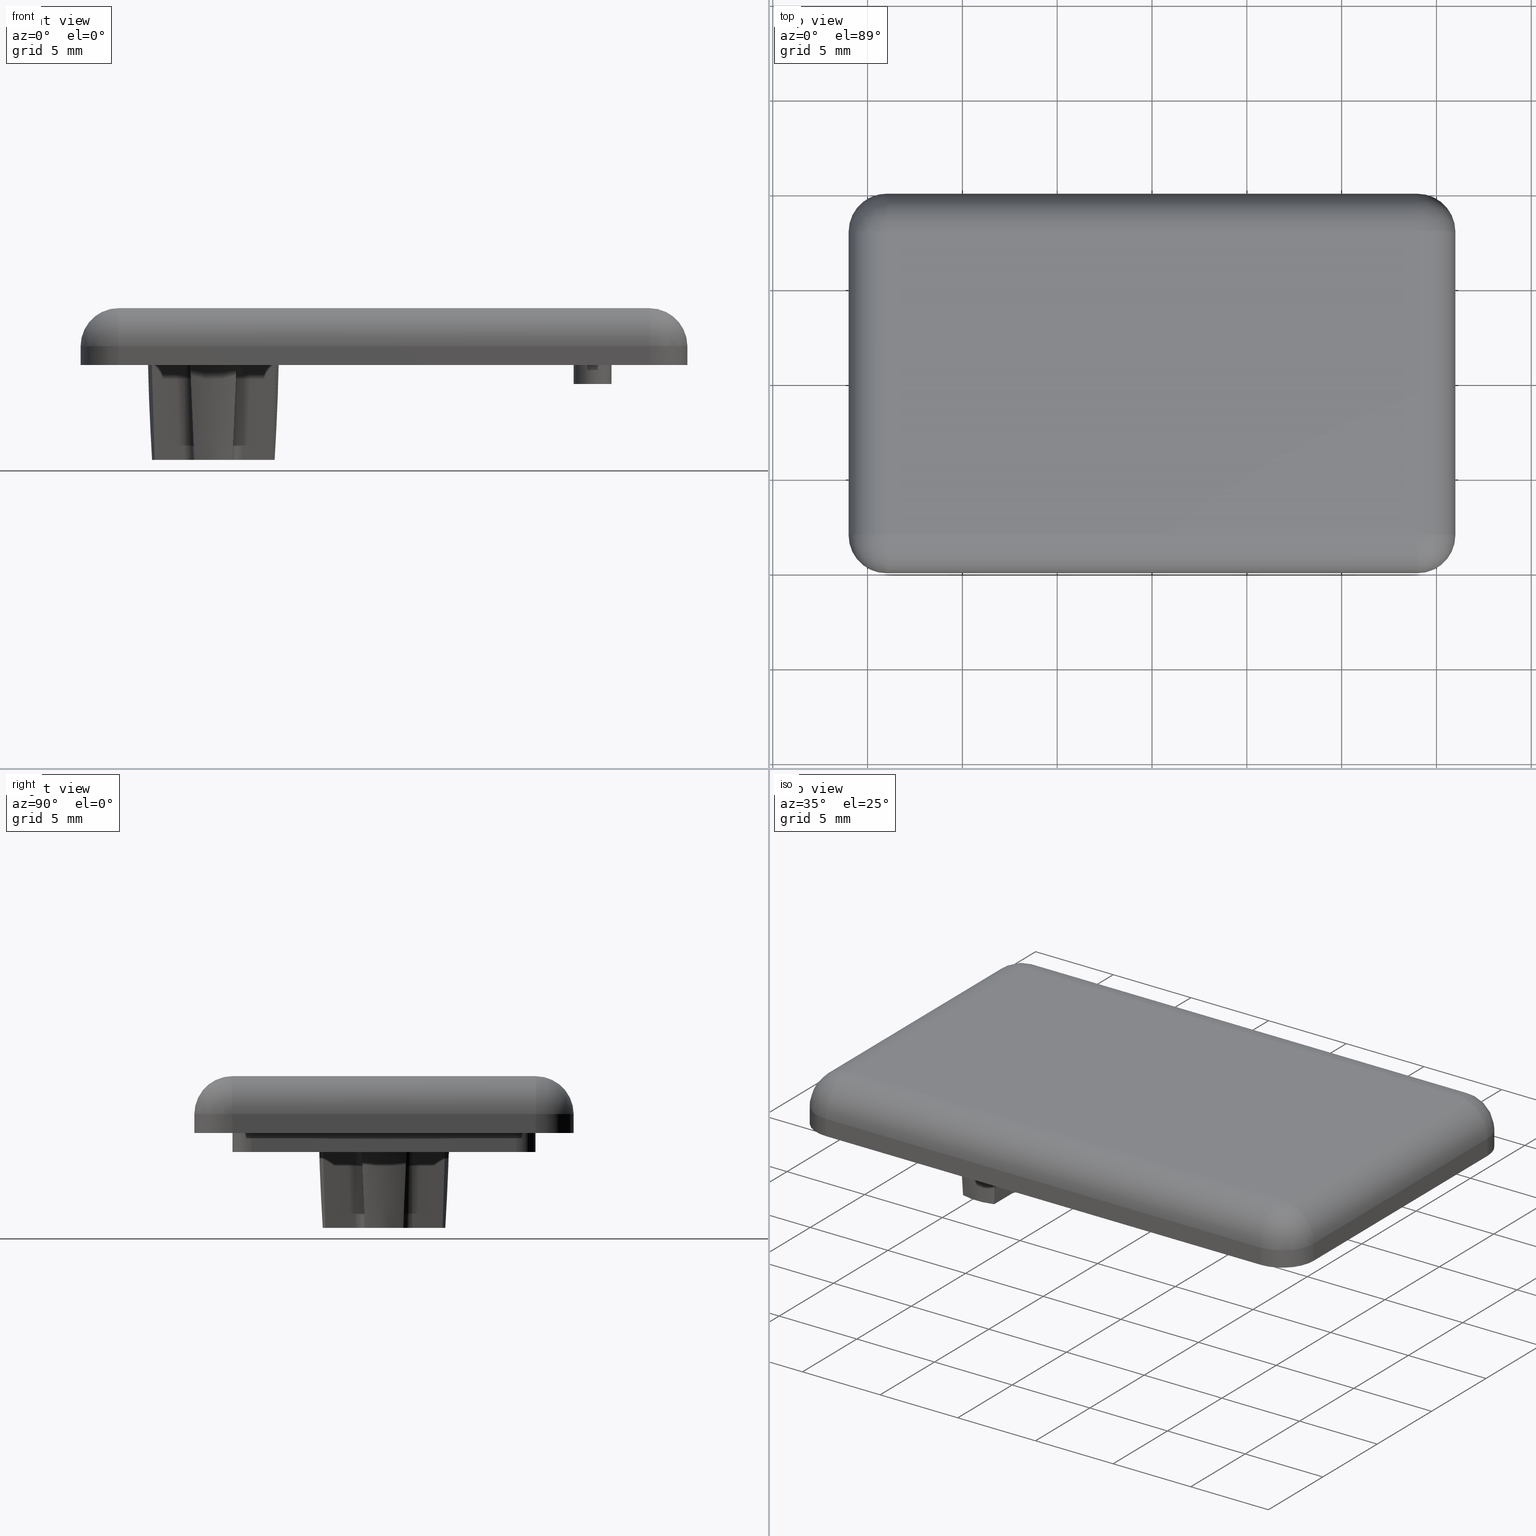
[diagram: canonical four-view strip — front | top / right | iso, engineering-drawing reading convention]
A machine part, canonical four-view strip (front | top / right | iso — engineering-drawing reading convention). The complete STEP part file that produces these views, byte-faithful:
ISO-10303-21;
HEADER;
/* Generated by software containing ST-Developer
 * from STEP Tools, Inc. (www.steptools.com) 
 */

FILE_DESCRIPTION(
/* description */ ('TAPPO 20x32 GRIGIO'),
/* implementation_level */ '2;1');

FILE_NAME(
/* name */ 
'Q:\\Catalogo\\2_Accessori Dierre\\Per Download Web e catalogo cartace
o\\CATALOGO TAPPI DI CHIUSURA\\PAGINA 88\\DTPTR0000016.stp',
/* time_stamp */ '2018-10-29T09:13:53+01:00',
/* author */ ('fzagni'),
/* organization */ (''),
/* preprocessor_version */ 'ST-DEVELOPER v16.1',
/* originating_system */ 'Autodesk Inventor 2016',
/* authorisation */ '');

FILE_SCHEMA (('AUTOMOTIVE_DESIGN { 1 0 10303 214 3 1 1 }'));
ENDSEC;

DATA;
#10=MECHANICAL_DESIGN_GEOMETRIC_PRESENTATION_REPRESENTATION('',(#13),#1175);
#11=SHAPE_REPRESENTATION_RELATIONSHIP('SRR','None',#1184,#12);
#12=ADVANCED_BREP_SHAPE_REPRESENTATION('',(#14),#1174);
#13=STYLED_ITEM('',(#1193),#14);
#14=MANIFOLD_SOLID_BREP('Solido1',#675);
#15=FACE_BOUND('',#133,.T.);
#16=FACE_BOUND('',#134,.T.);
#17=SPHERICAL_SURFACE('',#720,2.);
#18=SPHERICAL_SURFACE('',#726,2.);
#19=SPHERICAL_SURFACE('',#732,2.);
#20=SPHERICAL_SURFACE('',#739,2.);
#21=(
BOUNDED_CURVE()
B_SPLINE_CURVE(2,(#999,#1000,#1001),.UNSPECIFIED.,.F.,.F.)
B_SPLINE_CURVE_WITH_KNOTS((3,3),(82.649049565892,83.7909310166994),
 .UNSPECIFIED.)
CURVE()
GEOMETRIC_REPRESENTATION_ITEM()
RATIONAL_B_SPLINE_CURVE((1.,1.,1.))
REPRESENTATION_ITEM('')
);
#22=(
BOUNDED_CURVE()
B_SPLINE_CURVE(2,(#1004,#1005,#1006),.UNSPECIFIED.,.F.,.F.)
B_SPLINE_CURVE_WITH_KNOTS((3,3),(82.649049565206,83.7909310159598),
 .UNSPECIFIED.)
CURVE()
GEOMETRIC_REPRESENTATION_ITEM()
RATIONAL_B_SPLINE_CURVE((1.,1.,1.))
REPRESENTATION_ITEM('')
);
#23=(
BOUNDED_CURVE()
B_SPLINE_CURVE(2,(#1023,#1024,#1025),.UNSPECIFIED.,.F.,.F.)
B_SPLINE_CURVE_WITH_KNOTS((3,3),(129.365656320321,130.507537771102),
 .UNSPECIFIED.)
CURVE()
GEOMETRIC_REPRESENTATION_ITEM()
RATIONAL_B_SPLINE_CURVE((1.,1.,1.))
REPRESENTATION_ITEM('')
);
#24=(
BOUNDED_CURVE()
B_SPLINE_CURVE(2,(#1031,#1032,#1033),.UNSPECIFIED.,.F.,.F.)
B_SPLINE_CURVE_WITH_KNOTS((3,3),(129.365656320321,130.507537771102),
 .UNSPECIFIED.)
CURVE()
GEOMETRIC_REPRESENTATION_ITEM()
RATIONAL_B_SPLINE_CURVE((1.,1.,1.))
REPRESENTATION_ITEM('')
);
#25=(
BOUNDED_CURVE()
B_SPLINE_CURVE(2,(#1051,#1052,#1053),.UNSPECIFIED.,.F.,.F.)
B_SPLINE_CURVE_WITH_KNOTS((3,3),(129.365656319432,130.50753777024),
 .UNSPECIFIED.)
CURVE()
GEOMETRIC_REPRESENTATION_ITEM()
RATIONAL_B_SPLINE_CURVE((1.,1.,1.))
REPRESENTATION_ITEM('')
);
#26=(
BOUNDED_CURVE()
B_SPLINE_CURVE(2,(#1059,#1060,#1061),.UNSPECIFIED.,.F.,.F.)
B_SPLINE_CURVE_WITH_KNOTS((3,3),(82.649049565206,83.7909310159598),
 .UNSPECIFIED.)
CURVE()
GEOMETRIC_REPRESENTATION_ITEM()
RATIONAL_B_SPLINE_CURVE((1.,1.,1.))
REPRESENTATION_ITEM('')
);
#27=(
BOUNDED_CURVE()
B_SPLINE_CURVE(2,(#1079,#1080,#1081),.UNSPECIFIED.,.F.,.F.)
B_SPLINE_CURVE_WITH_KNOTS((3,3),(82.6490495655464,83.7909310163273),
 .UNSPECIFIED.)
CURVE()
GEOMETRIC_REPRESENTATION_ITEM()
RATIONAL_B_SPLINE_CURVE((1.,1.,1.))
REPRESENTATION_ITEM('')
);
#28=(
BOUNDED_CURVE()
B_SPLINE_CURVE(2,(#1087,#1088,#1089),.UNSPECIFIED.,.F.,.F.)
B_SPLINE_CURVE_WITH_KNOTS((3,3),(82.6490495655464,83.7909310163273),
 .UNSPECIFIED.)
CURVE()
GEOMETRIC_REPRESENTATION_ITEM()
RATIONAL_B_SPLINE_CURVE((1.,1.,1.))
REPRESENTATION_ITEM('')
);
#29=CONICAL_SURFACE('',#687,3.25,2.5);
#30=CONICAL_SURFACE('',#691,0.5,2.5);
#31=CONICAL_SURFACE('',#695,3.25,2.5);
#32=CONICAL_SURFACE('',#699,0.5,2.5);
#33=CONICAL_SURFACE('',#703,3.25,2.5);
#34=CONICAL_SURFACE('',#707,0.5,2.5);
#35=CONICAL_SURFACE('',#711,3.25,2.5);
#36=CONICAL_SURFACE('',#715,0.5,2.5);
#37=PLANE('',#680);
#38=PLANE('',#681);
#39=PLANE('',#685);
#40=PLANE('',#686);
#41=PLANE('',#690);
#42=PLANE('',#694);
#43=PLANE('',#698);
#44=PLANE('',#702);
#45=PLANE('',#706);
#46=PLANE('',#710);
#47=PLANE('',#714);
#48=PLANE('',#718);
#49=PLANE('',#719);
#50=PLANE('',#748);
#51=PLANE('',#749);
#52=PLANE('',#750);
#53=PLANE('',#751);
#54=PLANE('',#752);
#55=FACE_OUTER_BOUND('',#95,.T.);
#56=FACE_OUTER_BOUND('',#96,.T.);
#57=FACE_OUTER_BOUND('',#97,.T.);
#58=FACE_OUTER_BOUND('',#98,.T.);
#59=FACE_OUTER_BOUND('',#99,.T.);
#60=FACE_OUTER_BOUND('',#100,.T.);
#61=FACE_OUTER_BOUND('',#101,.T.);
#62=FACE_OUTER_BOUND('',#102,.T.);
#63=FACE_OUTER_BOUND('',#103,.T.);
#64=FACE_OUTER_BOUND('',#104,.T.);
#65=FACE_OUTER_BOUND('',#105,.T.);
#66=FACE_OUTER_BOUND('',#106,.T.);
#67=FACE_OUTER_BOUND('',#107,.T.);
#68=FACE_OUTER_BOUND('',#108,.T.);
#69=FACE_OUTER_BOUND('',#109,.T.);
#70=FACE_OUTER_BOUND('',#110,.T.);
#71=FACE_OUTER_BOUND('',#111,.T.);
#72=FACE_OUTER_BOUND('',#112,.T.);
#73=FACE_OUTER_BOUND('',#113,.T.);
#74=FACE_OUTER_BOUND('',#114,.T.);
#75=FACE_OUTER_BOUND('',#115,.T.);
#76=FACE_OUTER_BOUND('',#116,.T.);
#77=FACE_OUTER_BOUND('',#117,.T.);
#78=FACE_OUTER_BOUND('',#118,.T.);
#79=FACE_OUTER_BOUND('',#119,.T.);
#80=FACE_OUTER_BOUND('',#120,.T.);
#81=FACE_OUTER_BOUND('',#121,.T.);
#82=FACE_OUTER_BOUND('',#122,.T.);
#83=FACE_OUTER_BOUND('',#123,.T.);
#84=FACE_OUTER_BOUND('',#124,.T.);
#85=FACE_OUTER_BOUND('',#125,.T.);
#86=FACE_OUTER_BOUND('',#126,.T.);
#87=FACE_OUTER_BOUND('',#127,.T.);
#88=FACE_OUTER_BOUND('',#128,.T.);
#89=FACE_OUTER_BOUND('',#129,.T.);
#90=FACE_OUTER_BOUND('',#130,.T.);
#91=FACE_OUTER_BOUND('',#131,.T.);
#92=FACE_OUTER_BOUND('',#132,.T.);
#93=FACE_OUTER_BOUND('',#135,.T.);
#94=FACE_OUTER_BOUND('',#136,.T.);
#95=EDGE_LOOP('',(#433,#434,#435,#436));
#96=EDGE_LOOP('',(#437,#438,#439,#440));
#97=EDGE_LOOP('',(#441,#442,#443,#444));
#98=EDGE_LOOP('',(#445,#446,#447,#448));
#99=EDGE_LOOP('',(#449,#450,#451,#452));
#100=EDGE_LOOP('',(#453,#454,#455,#456));
#101=EDGE_LOOP('',(#457,#458,#459,#460));
#102=EDGE_LOOP('',(#461,#462,#463,#464));
#103=EDGE_LOOP('',(#465,#466,#467,#468));
#104=EDGE_LOOP('',(#469,#470,#471,#472));
#105=EDGE_LOOP('',(#473,#474,#475,#476));
#106=EDGE_LOOP('',(#477,#478,#479,#480));
#107=EDGE_LOOP('',(#481,#482,#483,#484));
#108=EDGE_LOOP('',(#485,#486,#487,#488));
#109=EDGE_LOOP('',(#489,#490,#491,#492));
#110=EDGE_LOOP('',(#493,#494,#495,#496));
#111=EDGE_LOOP('',(#497,#498,#499,#500));
#112=EDGE_LOOP('',(#501,#502,#503,#504));
#113=EDGE_LOOP('',(#505,#506,#507,#508));
#114=EDGE_LOOP('',(#509,#510,#511,#512));
#115=EDGE_LOOP('',(#513,#514,#515,#516));
#116=EDGE_LOOP('',(#517,#518,#519,#520));
#117=EDGE_LOOP('',(#521,#522,#523,#524,#525,#526,#527,#528,#529,#530,#531,
#532,#533,#534,#535,#536));
#118=EDGE_LOOP('',(#537,#538,#539));
#119=EDGE_LOOP('',(#540,#541,#542,#543));
#120=EDGE_LOOP('',(#544,#545,#546));
#121=EDGE_LOOP('',(#547,#548,#549,#550));
#122=EDGE_LOOP('',(#551,#552,#553));
#123=EDGE_LOOP('',(#554,#555,#556,#557));
#124=EDGE_LOOP('',(#558,#559,#560,#561));
#125=EDGE_LOOP('',(#562,#563,#564));
#126=EDGE_LOOP('',(#565,#566,#567,#568));
#127=EDGE_LOOP('',(#569,#570,#571,#572));
#128=EDGE_LOOP('',(#573,#574,#575,#576));
#129=EDGE_LOOP('',(#577,#578,#579,#580));
#130=EDGE_LOOP('',(#581,#582,#583,#584));
#131=EDGE_LOOP('',(#585,#586,#587,#588));
#132=EDGE_LOOP('',(#589,#590,#591,#592,#593,#594,#595,#596));
#133=EDGE_LOOP('',(#597,#598,#599,#600));
#134=EDGE_LOOP('',(#601,#602,#603,#604,#605,#606,#607,#608,#609,#610,#611,
#612,#613,#614,#615,#616));
#135=EDGE_LOOP('',(#617,#618,#619,#620));
#136=EDGE_LOOP('',(#621,#622,#623,#624));
#137=LINE('',#965,#189);
#138=LINE('',#968,#190);
#139=LINE('',#971,#191);
#140=LINE('',#973,#192);
#141=LINE('',#974,#193);
#142=LINE('',#977,#194);
#143=LINE('',#979,#195);
#144=LINE('',#980,#196);
#145=LINE('',#988,#197);
#146=LINE('',#990,#198);
#147=LINE('',#992,#199);
#148=LINE('',#993,#200);
#149=LINE('',#1009,#201);
#150=LINE('',#1011,#202);
#151=LINE('',#1012,#203);
#152=LINE('',#1017,#204);
#153=LINE('',#1021,#205);
#154=LINE('',#1026,#206);
#155=LINE('',#1037,#207);
#156=LINE('',#1039,#208);
#157=LINE('',#1040,#209);
#158=LINE('',#1045,#210);
#159=LINE('',#1049,#211);
#160=LINE('',#1054,#212);
#161=LINE('',#1065,#213);
#162=LINE('',#1067,#214);
#163=LINE('',#1068,#215);
#164=LINE('',#1073,#216);
#165=LINE('',#1077,#217);
#166=LINE('',#1082,#218);
#167=LINE('',#1093,#219);
#168=LINE('',#1095,#220);
#169=LINE('',#1096,#221);
#170=LINE('',#1101,#222);
#171=LINE('',#1104,#223);
#172=LINE('',#1105,#224);
#173=LINE('',#1117,#225);
#174=LINE('',#1118,#226);
#175=LINE('',#1129,#227);
#176=LINE('',#1130,#228);
#177=LINE('',#1141,#229);
#178=LINE('',#1142,#230);
#179=LINE('',#1144,#231);
#180=LINE('',#1155,#232);
#181=LINE('',#1156,#233);
#182=LINE('',#1158,#234);
#183=LINE('',#1160,#235);
#184=LINE('',#1162,#236);
#185=LINE('',#1164,#237);
#186=LINE('',#1166,#238);
#187=LINE('',#1168,#239);
#188=LINE('',#1169,#240);
#189=VECTOR('',#759,1.);
#190=VECTOR('',#762,1.);
#191=VECTOR('',#765,14.);
#192=VECTOR('',#766,1.);
#193=VECTOR('',#767,14.);
#194=VECTOR('',#770,14.);
#195=VECTOR('',#771,14.);
#196=VECTOR('',#772,1.);
#197=VECTOR('',#783,28.);
#198=VECTOR('',#784,16.);
#199=VECTOR('',#785,28.);
#200=VECTOR('',#786,16.);
#201=VECTOR('',#795,1.7472867467228);
#202=VECTOR('',#796,5.0047634258166);
#203=VECTOR('',#797,1.59232921921325);
#204=VECTOR('',#802,5.0047634258166);
#205=VECTOR('',#807,1.7472867467228);
#206=VECTOR('',#808,1.59232921921325);
#207=VECTOR('',#817,1.7472867467228);
#208=VECTOR('',#818,5.0047634258166);
#209=VECTOR('',#819,1.59232921921325);
#210=VECTOR('',#824,5.0047634258166);
#211=VECTOR('',#829,1.7472867467228);
#212=VECTOR('',#830,1.59232921921325);
#213=VECTOR('',#839,1.74728674672279);
#214=VECTOR('',#840,5.0047634258166);
#215=VECTOR('',#841,1.59232921921325);
#216=VECTOR('',#846,5.0047634258166);
#217=VECTOR('',#851,1.74728674672279);
#218=VECTOR('',#852,1.59232921921324);
#219=VECTOR('',#861,1.74728674672279);
#220=VECTOR('',#862,5.0047634258166);
#221=VECTOR('',#863,1.59232921921324);
#222=VECTOR('',#868,5.0047634258166);
#223=VECTOR('',#873,1.7472867467228);
#224=VECTOR('',#874,1.59232921921325);
#225=VECTOR('',#889,1.);
#226=VECTOR('',#890,1.);
#227=VECTOR('',#903,1.);
#228=VECTOR('',#904,1.);
#229=VECTOR('',#917,1.);
#230=VECTOR('',#918,1.);
#231=VECTOR('',#921,16.);
#232=VECTOR('',#934,1.);
#233=VECTOR('',#935,1.);
#234=VECTOR('',#938,28.);
#235=VECTOR('',#941,16.);
#236=VECTOR('',#944,28.);
#237=VECTOR('',#947,16.);
#238=VECTOR('',#950,28.);
#239=VECTOR('',#953,16.);
#240=VECTOR('',#954,28.);
#241=CIRCLE('',#678,0.999999999999999);
#242=CIRCLE('',#679,0.999999999999999);
#243=CIRCLE('',#683,0.999999999999999);
#244=CIRCLE('',#684,0.999999999999999);
#245=CIRCLE('',#688,3.46830471454256);
#246=CIRCLE('',#689,3.25);
#247=CIRCLE('',#692,0.28169528545744);
#248=CIRCLE('',#693,0.5);
#249=CIRCLE('',#696,3.46830471454256);
#250=CIRCLE('',#697,3.25);
#251=CIRCLE('',#700,0.28169528545744);
#252=CIRCLE('',#701,0.5);
#253=CIRCLE('',#704,3.46830471454256);
#254=CIRCLE('',#705,3.25);
#255=CIRCLE('',#708,0.28169528545744);
#256=CIRCLE('',#709,0.5);
#257=CIRCLE('',#712,3.46830471454256);
#258=CIRCLE('',#713,3.25);
#259=CIRCLE('',#716,0.28169528545744);
#260=CIRCLE('',#717,0.5);
#261=CIRCLE('',#721,2.);
#262=CIRCLE('',#722,2.);
#263=CIRCLE('',#723,2.);
#264=CIRCLE('',#725,2.);
#265=CIRCLE('',#727,2.);
#266=CIRCLE('',#728,2.);
#267=CIRCLE('',#729,2.);
#268=CIRCLE('',#731,2.);
#269=CIRCLE('',#733,2.);
#270=CIRCLE('',#734,2.);
#271=CIRCLE('',#735,2.);
#272=CIRCLE('',#737,2.);
#273=CIRCLE('',#740,2.);
#274=CIRCLE('',#741,2.);
#275=CIRCLE('',#742,2.);
#276=CIRCLE('',#744,2.);
#277=VERTEX_POINT('',#961);
#278=VERTEX_POINT('',#962);
#279=VERTEX_POINT('',#964);
#280=VERTEX_POINT('',#966);
#281=VERTEX_POINT('',#970);
#282=VERTEX_POINT('',#972);
#283=VERTEX_POINT('',#976);
#284=VERTEX_POINT('',#978);
#285=VERTEX_POINT('',#986);
#286=VERTEX_POINT('',#987);
#287=VERTEX_POINT('',#989);
#288=VERTEX_POINT('',#991);
#289=VERTEX_POINT('',#995);
#290=VERTEX_POINT('',#996);
#291=VERTEX_POINT('',#998);
#292=VERTEX_POINT('',#1002);
#293=VERTEX_POINT('',#1008);
#294=VERTEX_POINT('',#1010);
#295=VERTEX_POINT('',#1014);
#296=VERTEX_POINT('',#1016);
#297=VERTEX_POINT('',#1020);
#298=VERTEX_POINT('',#1022);
#299=VERTEX_POINT('',#1028);
#300=VERTEX_POINT('',#1030);
#301=VERTEX_POINT('',#1036);
#302=VERTEX_POINT('',#1038);
#303=VERTEX_POINT('',#1042);
#304=VERTEX_POINT('',#1044);
#305=VERTEX_POINT('',#1048);
#306=VERTEX_POINT('',#1050);
#307=VERTEX_POINT('',#1056);
#308=VERTEX_POINT('',#1058);
#309=VERTEX_POINT('',#1064);
#310=VERTEX_POINT('',#1066);
#311=VERTEX_POINT('',#1070);
#312=VERTEX_POINT('',#1072);
#313=VERTEX_POINT('',#1076);
#314=VERTEX_POINT('',#1078);
#315=VERTEX_POINT('',#1084);
#316=VERTEX_POINT('',#1086);
#317=VERTEX_POINT('',#1092);
#318=VERTEX_POINT('',#1094);
#319=VERTEX_POINT('',#1098);
#320=VERTEX_POINT('',#1100);
#321=VERTEX_POINT('',#1108);
#322=VERTEX_POINT('',#1110);
#323=VERTEX_POINT('',#1114);
#324=VERTEX_POINT('',#1115);
#325=VERTEX_POINT('',#1120);
#326=VERTEX_POINT('',#1122);
#327=VERTEX_POINT('',#1126);
#328=VERTEX_POINT('',#1127);
#329=VERTEX_POINT('',#1132);
#330=VERTEX_POINT('',#1134);
#331=VERTEX_POINT('',#1138);
#332=VERTEX_POINT('',#1139);
#333=VERTEX_POINT('',#1146);
#334=VERTEX_POINT('',#1148);
#335=VERTEX_POINT('',#1152);
#336=VERTEX_POINT('',#1153);
#337=EDGE_CURVE('',#277,#278,#241,.T.);
#338=EDGE_CURVE('',#279,#277,#137,.T.);
#339=EDGE_CURVE('',#280,#279,#242,.T.);
#340=EDGE_CURVE('',#280,#278,#138,.T.);
#341=EDGE_CURVE('',#281,#277,#139,.T.);
#342=EDGE_CURVE('',#282,#281,#140,.T.);
#343=EDGE_CURVE('',#279,#282,#141,.T.);
#344=EDGE_CURVE('',#278,#283,#142,.T.);
#345=EDGE_CURVE('',#284,#280,#143,.T.);
#346=EDGE_CURVE('',#284,#283,#144,.T.);
#347=EDGE_CURVE('',#283,#281,#243,.T.);
#348=EDGE_CURVE('',#282,#284,#244,.T.);
#349=EDGE_CURVE('',#285,#286,#145,.T.);
#350=EDGE_CURVE('',#287,#285,#146,.T.);
#351=EDGE_CURVE('',#288,#287,#147,.T.);
#352=EDGE_CURVE('',#286,#288,#148,.T.);
#353=EDGE_CURVE('',#289,#290,#245,.F.);
#354=EDGE_CURVE('',#291,#289,#21,.F.);
#355=EDGE_CURVE('',#291,#292,#246,.T.);
#356=EDGE_CURVE('',#292,#290,#22,.F.);
#357=EDGE_CURVE('',#293,#289,#149,.F.);
#358=EDGE_CURVE('',#294,#293,#150,.T.);
#359=EDGE_CURVE('',#294,#291,#151,.T.);
#360=EDGE_CURVE('',#295,#293,#247,.F.);
#361=EDGE_CURVE('',#296,#295,#152,.T.);
#362=EDGE_CURVE('',#296,#294,#248,.T.);
#363=EDGE_CURVE('',#297,#295,#153,.F.);
#364=EDGE_CURVE('',#298,#297,#23,.T.);
#365=EDGE_CURVE('',#298,#296,#154,.T.);
#366=EDGE_CURVE('',#299,#297,#249,.F.);
#367=EDGE_CURVE('',#300,#299,#24,.T.);
#368=EDGE_CURVE('',#300,#298,#250,.T.);
#369=EDGE_CURVE('',#301,#299,#155,.F.);
#370=EDGE_CURVE('',#302,#301,#156,.T.);
#371=EDGE_CURVE('',#302,#300,#157,.T.);
#372=EDGE_CURVE('',#303,#301,#251,.F.);
#373=EDGE_CURVE('',#304,#303,#158,.T.);
#374=EDGE_CURVE('',#304,#302,#252,.T.);
#375=EDGE_CURVE('',#305,#303,#159,.F.);
#376=EDGE_CURVE('',#306,#305,#25,.T.);
#377=EDGE_CURVE('',#306,#304,#160,.T.);
#378=EDGE_CURVE('',#307,#305,#253,.F.);
#379=EDGE_CURVE('',#308,#307,#26,.F.);
#380=EDGE_CURVE('',#308,#306,#254,.T.);
#381=EDGE_CURVE('',#309,#307,#161,.F.);
#382=EDGE_CURVE('',#310,#309,#162,.T.);
#383=EDGE_CURVE('',#310,#308,#163,.T.);
#384=EDGE_CURVE('',#311,#309,#255,.F.);
#385=EDGE_CURVE('',#312,#311,#164,.T.);
#386=EDGE_CURVE('',#312,#310,#256,.T.);
#387=EDGE_CURVE('',#313,#311,#165,.F.);
#388=EDGE_CURVE('',#314,#313,#27,.F.);
#389=EDGE_CURVE('',#314,#312,#166,.T.);
#390=EDGE_CURVE('',#315,#313,#257,.F.);
#391=EDGE_CURVE('',#316,#315,#28,.F.);
#392=EDGE_CURVE('',#316,#314,#258,.T.);
#393=EDGE_CURVE('',#317,#315,#167,.F.);
#394=EDGE_CURVE('',#318,#317,#168,.T.);
#395=EDGE_CURVE('',#318,#316,#169,.T.);
#396=EDGE_CURVE('',#319,#317,#259,.F.);
#397=EDGE_CURVE('',#320,#319,#170,.T.);
#398=EDGE_CURVE('',#320,#318,#260,.T.);
#399=EDGE_CURVE('',#290,#319,#171,.F.);
#400=EDGE_CURVE('',#292,#320,#172,.T.);
#401=EDGE_CURVE('',#321,#286,#261,.F.);
#402=EDGE_CURVE('',#322,#321,#262,.F.);
#403=EDGE_CURVE('',#286,#322,#263,.F.);
#404=EDGE_CURVE('',#323,#324,#264,.T.);
#405=EDGE_CURVE('',#324,#322,#173,.T.);
#406=EDGE_CURVE('',#321,#323,#174,.T.);
#407=EDGE_CURVE('',#325,#285,#265,.F.);
#408=EDGE_CURVE('',#326,#325,#266,.F.);
#409=EDGE_CURVE('',#285,#326,#267,.F.);
#410=EDGE_CURVE('',#327,#328,#268,.T.);
#411=EDGE_CURVE('',#328,#326,#175,.T.);
#412=EDGE_CURVE('',#325,#327,#176,.T.);
#413=EDGE_CURVE('',#329,#288,#269,.F.);
#414=EDGE_CURVE('',#330,#329,#270,.F.);
#415=EDGE_CURVE('',#288,#330,#271,.F.);
#416=EDGE_CURVE('',#331,#332,#272,.T.);
#417=EDGE_CURVE('',#332,#330,#177,.T.);
#418=EDGE_CURVE('',#329,#331,#178,.T.);
#419=EDGE_CURVE('',#330,#321,#179,.T.);
#420=EDGE_CURVE('',#333,#287,#273,.F.);
#421=EDGE_CURVE('',#334,#333,#274,.F.);
#422=EDGE_CURVE('',#287,#334,#275,.F.);
#423=EDGE_CURVE('',#335,#336,#276,.T.);
#424=EDGE_CURVE('',#336,#334,#180,.T.);
#425=EDGE_CURVE('',#333,#335,#181,.T.);
#426=EDGE_CURVE('',#334,#329,#182,.T.);
#427=EDGE_CURVE('',#326,#333,#183,.T.);
#428=EDGE_CURVE('',#322,#325,#184,.T.);
#429=EDGE_CURVE('',#323,#332,#185,.T.);
#430=EDGE_CURVE('',#331,#336,#186,.T.);
#431=EDGE_CURVE('',#335,#328,#187,.T.);
#432=EDGE_CURVE('',#327,#324,#188,.T.);
#433=ORIENTED_EDGE('',*,*,#337,.F.);
#434=ORIENTED_EDGE('',*,*,#338,.F.);
#435=ORIENTED_EDGE('',*,*,#339,.F.);
#436=ORIENTED_EDGE('',*,*,#340,.T.);
#437=ORIENTED_EDGE('',*,*,#341,.F.);
#438=ORIENTED_EDGE('',*,*,#342,.F.);
#439=ORIENTED_EDGE('',*,*,#343,.F.);
#440=ORIENTED_EDGE('',*,*,#338,.T.);
#441=ORIENTED_EDGE('',*,*,#344,.F.);
#442=ORIENTED_EDGE('',*,*,#340,.F.);
#443=ORIENTED_EDGE('',*,*,#345,.F.);
#444=ORIENTED_EDGE('',*,*,#346,.T.);
#445=ORIENTED_EDGE('',*,*,#347,.F.);
#446=ORIENTED_EDGE('',*,*,#346,.F.);
#447=ORIENTED_EDGE('',*,*,#348,.F.);
#448=ORIENTED_EDGE('',*,*,#342,.T.);
#449=ORIENTED_EDGE('',*,*,#343,.T.);
#450=ORIENTED_EDGE('',*,*,#348,.T.);
#451=ORIENTED_EDGE('',*,*,#345,.T.);
#452=ORIENTED_EDGE('',*,*,#339,.T.);
#453=ORIENTED_EDGE('',*,*,#349,.F.);
#454=ORIENTED_EDGE('',*,*,#350,.F.);
#455=ORIENTED_EDGE('',*,*,#351,.F.);
#456=ORIENTED_EDGE('',*,*,#352,.F.);
#457=ORIENTED_EDGE('',*,*,#353,.F.);
#458=ORIENTED_EDGE('',*,*,#354,.F.);
#459=ORIENTED_EDGE('',*,*,#355,.T.);
#460=ORIENTED_EDGE('',*,*,#356,.T.);
#461=ORIENTED_EDGE('',*,*,#357,.F.);
#462=ORIENTED_EDGE('',*,*,#358,.F.);
#463=ORIENTED_EDGE('',*,*,#359,.T.);
#464=ORIENTED_EDGE('',*,*,#354,.T.);
#465=ORIENTED_EDGE('',*,*,#360,.F.);
#466=ORIENTED_EDGE('',*,*,#361,.F.);
#467=ORIENTED_EDGE('',*,*,#362,.T.);
#468=ORIENTED_EDGE('',*,*,#358,.T.);
#469=ORIENTED_EDGE('',*,*,#363,.F.);
#470=ORIENTED_EDGE('',*,*,#364,.F.);
#471=ORIENTED_EDGE('',*,*,#365,.T.);
#472=ORIENTED_EDGE('',*,*,#361,.T.);
#473=ORIENTED_EDGE('',*,*,#366,.F.);
#474=ORIENTED_EDGE('',*,*,#367,.F.);
#475=ORIENTED_EDGE('',*,*,#368,.T.);
#476=ORIENTED_EDGE('',*,*,#364,.T.);
#477=ORIENTED_EDGE('',*,*,#369,.F.);
#478=ORIENTED_EDGE('',*,*,#370,.F.);
#479=ORIENTED_EDGE('',*,*,#371,.T.);
#480=ORIENTED_EDGE('',*,*,#367,.T.);
#481=ORIENTED_EDGE('',*,*,#372,.F.);
#482=ORIENTED_EDGE('',*,*,#373,.F.);
#483=ORIENTED_EDGE('',*,*,#374,.T.);
#484=ORIENTED_EDGE('',*,*,#370,.T.);
#485=ORIENTED_EDGE('',*,*,#375,.F.);
#486=ORIENTED_EDGE('',*,*,#376,.F.);
#487=ORIENTED_EDGE('',*,*,#377,.T.);
#488=ORIENTED_EDGE('',*,*,#373,.T.);
#489=ORIENTED_EDGE('',*,*,#378,.F.);
#490=ORIENTED_EDGE('',*,*,#379,.F.);
#491=ORIENTED_EDGE('',*,*,#380,.T.);
#492=ORIENTED_EDGE('',*,*,#376,.T.);
#493=ORIENTED_EDGE('',*,*,#381,.F.);
#494=ORIENTED_EDGE('',*,*,#382,.F.);
#495=ORIENTED_EDGE('',*,*,#383,.T.);
#496=ORIENTED_EDGE('',*,*,#379,.T.);
#497=ORIENTED_EDGE('',*,*,#384,.F.);
#498=ORIENTED_EDGE('',*,*,#385,.F.);
#499=ORIENTED_EDGE('',*,*,#386,.T.);
#500=ORIENTED_EDGE('',*,*,#382,.T.);
#501=ORIENTED_EDGE('',*,*,#387,.F.);
#502=ORIENTED_EDGE('',*,*,#388,.F.);
#503=ORIENTED_EDGE('',*,*,#389,.T.);
#504=ORIENTED_EDGE('',*,*,#385,.T.);
#505=ORIENTED_EDGE('',*,*,#390,.F.);
#506=ORIENTED_EDGE('',*,*,#391,.F.);
#507=ORIENTED_EDGE('',*,*,#392,.T.);
#508=ORIENTED_EDGE('',*,*,#388,.T.);
#509=ORIENTED_EDGE('',*,*,#393,.F.);
#510=ORIENTED_EDGE('',*,*,#394,.F.);
#511=ORIENTED_EDGE('',*,*,#395,.T.);
#512=ORIENTED_EDGE('',*,*,#391,.T.);
#513=ORIENTED_EDGE('',*,*,#396,.F.);
#514=ORIENTED_EDGE('',*,*,#397,.F.);
#515=ORIENTED_EDGE('',*,*,#398,.T.);
#516=ORIENTED_EDGE('',*,*,#394,.T.);
#517=ORIENTED_EDGE('',*,*,#399,.F.);
#518=ORIENTED_EDGE('',*,*,#356,.F.);
#519=ORIENTED_EDGE('',*,*,#400,.T.);
#520=ORIENTED_EDGE('',*,*,#397,.T.);
#521=ORIENTED_EDGE('',*,*,#374,.F.);
#522=ORIENTED_EDGE('',*,*,#377,.F.);
#523=ORIENTED_EDGE('',*,*,#380,.F.);
#524=ORIENTED_EDGE('',*,*,#383,.F.);
#525=ORIENTED_EDGE('',*,*,#386,.F.);
#526=ORIENTED_EDGE('',*,*,#389,.F.);
#527=ORIENTED_EDGE('',*,*,#392,.F.);
#528=ORIENTED_EDGE('',*,*,#395,.F.);
#529=ORIENTED_EDGE('',*,*,#398,.F.);
#530=ORIENTED_EDGE('',*,*,#400,.F.);
#531=ORIENTED_EDGE('',*,*,#355,.F.);
#532=ORIENTED_EDGE('',*,*,#359,.F.);
#533=ORIENTED_EDGE('',*,*,#362,.F.);
#534=ORIENTED_EDGE('',*,*,#365,.F.);
#535=ORIENTED_EDGE('',*,*,#368,.F.);
#536=ORIENTED_EDGE('',*,*,#371,.F.);
#537=ORIENTED_EDGE('',*,*,#401,.F.);
#538=ORIENTED_EDGE('',*,*,#402,.F.);
#539=ORIENTED_EDGE('',*,*,#403,.F.);
#540=ORIENTED_EDGE('',*,*,#404,.T.);
#541=ORIENTED_EDGE('',*,*,#405,.T.);
#542=ORIENTED_EDGE('',*,*,#402,.T.);
#543=ORIENTED_EDGE('',*,*,#406,.T.);
#544=ORIENTED_EDGE('',*,*,#407,.F.);
#545=ORIENTED_EDGE('',*,*,#408,.F.);
#546=ORIENTED_EDGE('',*,*,#409,.F.);
#547=ORIENTED_EDGE('',*,*,#410,.T.);
#548=ORIENTED_EDGE('',*,*,#411,.T.);
#549=ORIENTED_EDGE('',*,*,#408,.T.);
#550=ORIENTED_EDGE('',*,*,#412,.T.);
#551=ORIENTED_EDGE('',*,*,#413,.F.);
#552=ORIENTED_EDGE('',*,*,#414,.F.);
#553=ORIENTED_EDGE('',*,*,#415,.F.);
#554=ORIENTED_EDGE('',*,*,#416,.T.);
#555=ORIENTED_EDGE('',*,*,#417,.T.);
#556=ORIENTED_EDGE('',*,*,#414,.T.);
#557=ORIENTED_EDGE('',*,*,#418,.T.);
#558=ORIENTED_EDGE('',*,*,#401,.T.);
#559=ORIENTED_EDGE('',*,*,#352,.T.);
#560=ORIENTED_EDGE('',*,*,#415,.T.);
#561=ORIENTED_EDGE('',*,*,#419,.T.);
#562=ORIENTED_EDGE('',*,*,#420,.F.);
#563=ORIENTED_EDGE('',*,*,#421,.F.);
#564=ORIENTED_EDGE('',*,*,#422,.F.);
#565=ORIENTED_EDGE('',*,*,#423,.T.);
#566=ORIENTED_EDGE('',*,*,#424,.T.);
#567=ORIENTED_EDGE('',*,*,#421,.T.);
#568=ORIENTED_EDGE('',*,*,#425,.T.);
#569=ORIENTED_EDGE('',*,*,#413,.T.);
#570=ORIENTED_EDGE('',*,*,#351,.T.);
#571=ORIENTED_EDGE('',*,*,#422,.T.);
#572=ORIENTED_EDGE('',*,*,#426,.T.);
#573=ORIENTED_EDGE('',*,*,#420,.T.);
#574=ORIENTED_EDGE('',*,*,#350,.T.);
#575=ORIENTED_EDGE('',*,*,#409,.T.);
#576=ORIENTED_EDGE('',*,*,#427,.T.);
#577=ORIENTED_EDGE('',*,*,#407,.T.);
#578=ORIENTED_EDGE('',*,*,#349,.T.);
#579=ORIENTED_EDGE('',*,*,#403,.T.);
#580=ORIENTED_EDGE('',*,*,#428,.T.);
#581=ORIENTED_EDGE('',*,*,#406,.F.);
#582=ORIENTED_EDGE('',*,*,#419,.F.);
#583=ORIENTED_EDGE('',*,*,#417,.F.);
#584=ORIENTED_EDGE('',*,*,#429,.F.);
#585=ORIENTED_EDGE('',*,*,#418,.F.);
#586=ORIENTED_EDGE('',*,*,#426,.F.);
#587=ORIENTED_EDGE('',*,*,#424,.F.);
#588=ORIENTED_EDGE('',*,*,#430,.F.);
#589=ORIENTED_EDGE('',*,*,#404,.F.);
#590=ORIENTED_EDGE('',*,*,#429,.T.);
#591=ORIENTED_EDGE('',*,*,#416,.F.);
#592=ORIENTED_EDGE('',*,*,#430,.T.);
#593=ORIENTED_EDGE('',*,*,#423,.F.);
#594=ORIENTED_EDGE('',*,*,#431,.T.);
#595=ORIENTED_EDGE('',*,*,#410,.F.);
#596=ORIENTED_EDGE('',*,*,#432,.T.);
#597=ORIENTED_EDGE('',*,*,#347,.T.);
#598=ORIENTED_EDGE('',*,*,#341,.T.);
#599=ORIENTED_EDGE('',*,*,#337,.T.);
#600=ORIENTED_EDGE('',*,*,#344,.T.);
#601=ORIENTED_EDGE('',*,*,#375,.T.);
#602=ORIENTED_EDGE('',*,*,#372,.T.);
#603=ORIENTED_EDGE('',*,*,#369,.T.);
#604=ORIENTED_EDGE('',*,*,#366,.T.);
#605=ORIENTED_EDGE('',*,*,#363,.T.);
#606=ORIENTED_EDGE('',*,*,#360,.T.);
#607=ORIENTED_EDGE('',*,*,#357,.T.);
#608=ORIENTED_EDGE('',*,*,#353,.T.);
#609=ORIENTED_EDGE('',*,*,#399,.T.);
#610=ORIENTED_EDGE('',*,*,#396,.T.);
#611=ORIENTED_EDGE('',*,*,#393,.T.);
#612=ORIENTED_EDGE('',*,*,#390,.T.);
#613=ORIENTED_EDGE('',*,*,#387,.T.);
#614=ORIENTED_EDGE('',*,*,#384,.T.);
#615=ORIENTED_EDGE('',*,*,#381,.T.);
#616=ORIENTED_EDGE('',*,*,#378,.T.);
#617=ORIENTED_EDGE('',*,*,#411,.F.);
#618=ORIENTED_EDGE('',*,*,#431,.F.);
#619=ORIENTED_EDGE('',*,*,#425,.F.);
#620=ORIENTED_EDGE('',*,*,#427,.F.);
#621=ORIENTED_EDGE('',*,*,#405,.F.);
#622=ORIENTED_EDGE('',*,*,#432,.F.);
#623=ORIENTED_EDGE('',*,*,#412,.F.);
#624=ORIENTED_EDGE('',*,*,#428,.F.);
#625=CYLINDRICAL_SURFACE('',#677,0.999999999999999);
#626=CYLINDRICAL_SURFACE('',#682,0.999999999999999);
#627=CYLINDRICAL_SURFACE('',#724,2.);
#628=CYLINDRICAL_SURFACE('',#730,2.);
#629=CYLINDRICAL_SURFACE('',#736,2.);
#630=CYLINDRICAL_SURFACE('',#738,2.);
#631=CYLINDRICAL_SURFACE('',#743,2.);
#632=CYLINDRICAL_SURFACE('',#745,2.);
#633=CYLINDRICAL_SURFACE('',#746,2.);
#634=CYLINDRICAL_SURFACE('',#747,2.);
#635=ADVANCED_FACE('',(#55),#625,.T.);
#636=ADVANCED_FACE('',(#56),#37,.T.);
#637=ADVANCED_FACE('',(#57),#38,.T.);
#638=ADVANCED_FACE('',(#58),#626,.T.);
#639=ADVANCED_FACE('',(#59),#39,.F.);
#640=ADVANCED_FACE('',(#60),#40,.T.);
#641=ADVANCED_FACE('',(#61),#29,.T.);
#642=ADVANCED_FACE('',(#62),#41,.T.);
#643=ADVANCED_FACE('',(#63),#30,.F.);
#644=ADVANCED_FACE('',(#64),#42,.T.);
#645=ADVANCED_FACE('',(#65),#31,.T.);
#646=ADVANCED_FACE('',(#66),#43,.T.);
#647=ADVANCED_FACE('',(#67),#32,.F.);
#648=ADVANCED_FACE('',(#68),#44,.T.);
#649=ADVANCED_FACE('',(#69),#33,.T.);
#650=ADVANCED_FACE('',(#70),#45,.T.);
#651=ADVANCED_FACE('',(#71),#34,.F.);
#652=ADVANCED_FACE('',(#72),#46,.T.);
#653=ADVANCED_FACE('',(#73),#35,.T.);
#654=ADVANCED_FACE('',(#74),#47,.T.);
#655=ADVANCED_FACE('',(#75),#36,.F.);
#656=ADVANCED_FACE('',(#76),#48,.T.);
#657=ADVANCED_FACE('',(#77),#49,.F.);
#658=ADVANCED_FACE('',(#78),#17,.T.);
#659=ADVANCED_FACE('',(#79),#627,.T.);
#660=ADVANCED_FACE('',(#80),#18,.T.);
#661=ADVANCED_FACE('',(#81),#628,.T.);
#662=ADVANCED_FACE('',(#82),#19,.T.);
#663=ADVANCED_FACE('',(#83),#629,.T.);
#664=ADVANCED_FACE('',(#84),#630,.T.);
#665=ADVANCED_FACE('',(#85),#20,.T.);
#666=ADVANCED_FACE('',(#86),#631,.T.);
#667=ADVANCED_FACE('',(#87),#632,.T.);
#668=ADVANCED_FACE('',(#88),#633,.T.);
#669=ADVANCED_FACE('',(#89),#634,.T.);
#670=ADVANCED_FACE('',(#90),#50,.T.);
#671=ADVANCED_FACE('',(#91),#51,.T.);
#672=ADVANCED_FACE('',(#92,#15,#16),#52,.F.);
#673=ADVANCED_FACE('',(#93),#53,.T.);
#674=ADVANCED_FACE('',(#94),#54,.T.);
#675=CLOSED_SHELL('',(#635,#636,#637,#638,#639,#640,#641,#642,#643,#644,
#645,#646,#647,#648,#649,#650,#651,#652,#653,#654,#655,#656,#657,#658,#659,
#660,#661,#662,#663,#664,#665,#666,#667,#668,#669,#670,#671,#672,#673,#674));
#676=AXIS2_PLACEMENT_3D('placement',#959,#753,#754);
#677=AXIS2_PLACEMENT_3D('',#960,#755,#756);
#678=AXIS2_PLACEMENT_3D('',#963,#757,#758);
#679=AXIS2_PLACEMENT_3D('',#967,#760,#761);
#680=AXIS2_PLACEMENT_3D('',#969,#763,#764);
#681=AXIS2_PLACEMENT_3D('',#975,#768,#769);
#682=AXIS2_PLACEMENT_3D('',#981,#773,#774);
#683=AXIS2_PLACEMENT_3D('',#982,#775,#776);
#684=AXIS2_PLACEMENT_3D('',#983,#777,#778);
#685=AXIS2_PLACEMENT_3D('',#984,#779,#780);
#686=AXIS2_PLACEMENT_3D('',#985,#781,#782);
#687=AXIS2_PLACEMENT_3D('',#994,#787,#788);
#688=AXIS2_PLACEMENT_3D('',#997,#789,#790);
#689=AXIS2_PLACEMENT_3D('',#1003,#791,#792);
#690=AXIS2_PLACEMENT_3D('',#1007,#793,#794);
#691=AXIS2_PLACEMENT_3D('',#1013,#798,#799);
#692=AXIS2_PLACEMENT_3D('',#1015,#800,#801);
#693=AXIS2_PLACEMENT_3D('',#1018,#803,#804);
#694=AXIS2_PLACEMENT_3D('',#1019,#805,#806);
#695=AXIS2_PLACEMENT_3D('',#1027,#809,#810);
#696=AXIS2_PLACEMENT_3D('',#1029,#811,#812);
#697=AXIS2_PLACEMENT_3D('',#1034,#813,#814);
#698=AXIS2_PLACEMENT_3D('',#1035,#815,#816);
#699=AXIS2_PLACEMENT_3D('',#1041,#820,#821);
#700=AXIS2_PLACEMENT_3D('',#1043,#822,#823);
#701=AXIS2_PLACEMENT_3D('',#1046,#825,#826);
#702=AXIS2_PLACEMENT_3D('',#1047,#827,#828);
#703=AXIS2_PLACEMENT_3D('',#1055,#831,#832);
#704=AXIS2_PLACEMENT_3D('',#1057,#833,#834);
#705=AXIS2_PLACEMENT_3D('',#1062,#835,#836);
#706=AXIS2_PLACEMENT_3D('',#1063,#837,#838);
#707=AXIS2_PLACEMENT_3D('',#1069,#842,#843);
#708=AXIS2_PLACEMENT_3D('',#1071,#844,#845);
#709=AXIS2_PLACEMENT_3D('',#1074,#847,#848);
#710=AXIS2_PLACEMENT_3D('',#1075,#849,#850);
#711=AXIS2_PLACEMENT_3D('',#1083,#853,#854);
#712=AXIS2_PLACEMENT_3D('',#1085,#855,#856);
#713=AXIS2_PLACEMENT_3D('',#1090,#857,#858);
#714=AXIS2_PLACEMENT_3D('',#1091,#859,#860);
#715=AXIS2_PLACEMENT_3D('',#1097,#864,#865);
#716=AXIS2_PLACEMENT_3D('',#1099,#866,#867);
#717=AXIS2_PLACEMENT_3D('',#1102,#869,#870);
#718=AXIS2_PLACEMENT_3D('',#1103,#871,#872);
#719=AXIS2_PLACEMENT_3D('',#1106,#875,#876);
#720=AXIS2_PLACEMENT_3D('',#1107,#877,#878);
#721=AXIS2_PLACEMENT_3D('',#1109,#879,#880);
#722=AXIS2_PLACEMENT_3D('',#1111,#881,#882);
#723=AXIS2_PLACEMENT_3D('',#1112,#883,#884);
#724=AXIS2_PLACEMENT_3D('',#1113,#885,#886);
#725=AXIS2_PLACEMENT_3D('',#1116,#887,#888);
#726=AXIS2_PLACEMENT_3D('',#1119,#891,#892);
#727=AXIS2_PLACEMENT_3D('',#1121,#893,#894);
#728=AXIS2_PLACEMENT_3D('',#1123,#895,#896);
#729=AXIS2_PLACEMENT_3D('',#1124,#897,#898);
#730=AXIS2_PLACEMENT_3D('',#1125,#899,#900);
#731=AXIS2_PLACEMENT_3D('',#1128,#901,#902);
#732=AXIS2_PLACEMENT_3D('',#1131,#905,#906);
#733=AXIS2_PLACEMENT_3D('',#1133,#907,#908);
#734=AXIS2_PLACEMENT_3D('',#1135,#909,#910);
#735=AXIS2_PLACEMENT_3D('',#1136,#911,#912);
#736=AXIS2_PLACEMENT_3D('',#1137,#913,#914);
#737=AXIS2_PLACEMENT_3D('',#1140,#915,#916);
#738=AXIS2_PLACEMENT_3D('',#1143,#919,#920);
#739=AXIS2_PLACEMENT_3D('',#1145,#922,#923);
#740=AXIS2_PLACEMENT_3D('',#1147,#924,#925);
#741=AXIS2_PLACEMENT_3D('',#1149,#926,#927);
#742=AXIS2_PLACEMENT_3D('',#1150,#928,#929);
#743=AXIS2_PLACEMENT_3D('',#1151,#930,#931);
#744=AXIS2_PLACEMENT_3D('',#1154,#932,#933);
#745=AXIS2_PLACEMENT_3D('',#1157,#936,#937);
#746=AXIS2_PLACEMENT_3D('',#1159,#939,#940);
#747=AXIS2_PLACEMENT_3D('',#1161,#942,#943);
#748=AXIS2_PLACEMENT_3D('',#1163,#945,#946);
#749=AXIS2_PLACEMENT_3D('',#1165,#948,#949);
#750=AXIS2_PLACEMENT_3D('',#1167,#951,#952);
#751=AXIS2_PLACEMENT_3D('',#1170,#955,#956);
#752=AXIS2_PLACEMENT_3D('',#1171,#957,#958);
#753=DIRECTION('axis',(0.,0.,1.));
#754=DIRECTION('refdir',(1.,0.,0.));
#755=DIRECTION('center_axis',(0.,0.,1.));
#756=DIRECTION('ref_axis',(1.,0.,0.));
#757=DIRECTION('center_axis',(0.,0.,1.));
#758=DIRECTION('ref_axis',(1.,0.,0.));
#759=DIRECTION('',(0.,0.,1.));
#760=DIRECTION('center_axis',(0.,0.,-1.));
#761=DIRECTION('ref_axis',(1.,0.,0.));
#762=DIRECTION('',(0.,0.,1.));
#763=DIRECTION('center_axis',(-1.,0.,0.));
#764=DIRECTION('ref_axis',(0.,-1.,0.));
#765=DIRECTION('',(0.,-1.,0.));
#766=DIRECTION('',(0.,0.,1.));
#767=DIRECTION('',(0.,1.,0.));
#768=DIRECTION('center_axis',(1.,0.,0.));
#769=DIRECTION('ref_axis',(0.,1.,0.));
#770=DIRECTION('',(0.,1.,0.));
#771=DIRECTION('',(0.,-1.,0.));
#772=DIRECTION('',(0.,0.,1.));
#773=DIRECTION('center_axis',(0.,0.,1.));
#774=DIRECTION('ref_axis',(-1.,6.66133814775093E-15,0.));
#775=DIRECTION('center_axis',(0.,0.,1.));
#776=DIRECTION('ref_axis',(-1.,6.66133814775093E-15,0.));
#777=DIRECTION('center_axis',(0.,0.,-1.));
#778=DIRECTION('ref_axis',(-1.,6.66133814775093E-15,0.));
#779=DIRECTION('center_axis',(0.,0.,1.));
#780=DIRECTION('ref_axis',(1.,0.,0.));
#781=DIRECTION('center_axis',(0.,0.,1.));
#782=DIRECTION('ref_axis',(1.,0.,0.));
#783=DIRECTION('',(1.,2.77555756156289E-16,0.));
#784=DIRECTION('',(0.,1.,0.));
#785=DIRECTION('',(-1.,-3.46944695195361E-17,0.));
#786=DIRECTION('',(0.,-1.,0.));
#787=DIRECTION('center_axis',(0.,0.,1.));
#788=DIRECTION('ref_axis',(1.,0.,0.));
#789=DIRECTION('center_axis',(0.,0.,-1.));
#790=DIRECTION('ref_axis',(1.,0.,0.));
#791=DIRECTION('center_axis',(0.,0.,1.));
#792=DIRECTION('ref_axis',(1.,0.,0.));
#793=DIRECTION('center_axis',(0.999048221581858,0.,-0.043619387365336));
#794=DIRECTION('ref_axis',(0.,1.,0.));
#795=DIRECTION('',(0.,-1.,0.));
#796=DIRECTION('',(0.043619387365336,0.,0.999048221581858));
#797=DIRECTION('',(0.,1.,0.));
#798=DIRECTION('center_axis',(0.,0.,-1.));
#799=DIRECTION('ref_axis',(1.,0.,0.));
#800=DIRECTION('center_axis',(0.,0.,1.));
#801=DIRECTION('ref_axis',(1.,0.,0.));
#802=DIRECTION('',(0.,0.043619387365336,0.999048221581858));
#803=DIRECTION('center_axis',(0.,0.,-1.));
#804=DIRECTION('ref_axis',(1.,0.,0.));
#805=DIRECTION('center_axis',(0.,0.999048221581858,-0.043619387365336));
#806=DIRECTION('ref_axis',(-1.,0.,0.));
#807=DIRECTION('',(1.,0.,0.));
#808=DIRECTION('',(-1.,0.,0.));
#809=DIRECTION('center_axis',(0.,0.,1.));
#810=DIRECTION('ref_axis',(1.,0.,0.));
#811=DIRECTION('center_axis',(0.,0.,-1.));
#812=DIRECTION('ref_axis',(1.,0.,0.));
#813=DIRECTION('center_axis',(0.,0.,1.));
#814=DIRECTION('ref_axis',(1.,0.,0.));
#815=DIRECTION('center_axis',(0.,-0.999048221581858,-0.043619387365336));
#816=DIRECTION('ref_axis',(1.,0.,0.));
#817=DIRECTION('',(-1.,0.,0.));
#818=DIRECTION('',(0.,-0.043619387365336,0.999048221581858));
#819=DIRECTION('',(1.,0.,0.));
#820=DIRECTION('center_axis',(0.,0.,-1.));
#821=DIRECTION('ref_axis',(0.,-1.,0.));
#822=DIRECTION('center_axis',(0.,0.,1.));
#823=DIRECTION('ref_axis',(0.,-1.,0.));
#824=DIRECTION('',(0.043619387365336,0.,0.999048221581858));
#825=DIRECTION('center_axis',(0.,0.,-1.));
#826=DIRECTION('ref_axis',(0.,-1.,0.));
#827=DIRECTION('center_axis',(0.999048221581858,0.,-0.043619387365336));
#828=DIRECTION('ref_axis',(0.,1.,0.));
#829=DIRECTION('',(0.,-1.,0.));
#830=DIRECTION('',(0.,1.,0.));
#831=DIRECTION('center_axis',(0.,0.,1.));
#832=DIRECTION('ref_axis',(1.,0.,0.));
#833=DIRECTION('center_axis',(0.,0.,-1.));
#834=DIRECTION('ref_axis',(1.,0.,0.));
#835=DIRECTION('center_axis',(0.,0.,1.));
#836=DIRECTION('ref_axis',(1.,0.,0.));
#837=DIRECTION('center_axis',(-0.999048221581858,0.,-0.043619387365336));
#838=DIRECTION('ref_axis',(0.,-1.,0.));
#839=DIRECTION('',(0.,1.,0.));
#840=DIRECTION('',(-0.043619387365336,0.,0.999048221581858));
#841=DIRECTION('',(0.,-1.,0.));
#842=DIRECTION('center_axis',(0.,0.,-1.));
#843=DIRECTION('ref_axis',(-1.,0.,0.));
#844=DIRECTION('center_axis',(0.,0.,1.));
#845=DIRECTION('ref_axis',(-1.,0.,0.));
#846=DIRECTION('',(0.,-0.043619387365336,0.999048221581858));
#847=DIRECTION('center_axis',(0.,0.,-1.));
#848=DIRECTION('ref_axis',(-1.,0.,0.));
#849=DIRECTION('center_axis',(0.,-0.999048221581858,-0.043619387365336));
#850=DIRECTION('ref_axis',(1.,0.,0.));
#851=DIRECTION('',(-1.,0.,0.));
#852=DIRECTION('',(1.,0.,0.));
#853=DIRECTION('center_axis',(0.,0.,1.));
#854=DIRECTION('ref_axis',(1.,0.,0.));
#855=DIRECTION('center_axis',(0.,0.,-1.));
#856=DIRECTION('ref_axis',(1.,0.,0.));
#857=DIRECTION('center_axis',(0.,0.,1.));
#858=DIRECTION('ref_axis',(1.,0.,0.));
#859=DIRECTION('center_axis',(0.,0.999048221581858,-0.043619387365336));
#860=DIRECTION('ref_axis',(-1.,0.,0.));
#861=DIRECTION('',(1.,0.,0.));
#862=DIRECTION('',(0.,0.043619387365336,0.999048221581858));
#863=DIRECTION('',(-1.,0.,0.));
#864=DIRECTION('center_axis',(0.,0.,-1.));
#865=DIRECTION('ref_axis',(0.,1.,0.));
#866=DIRECTION('center_axis',(0.,0.,1.));
#867=DIRECTION('ref_axis',(0.,1.,0.));
#868=DIRECTION('',(-0.043619387365336,0.,0.999048221581858));
#869=DIRECTION('center_axis',(0.,0.,-1.));
#870=DIRECTION('ref_axis',(0.,1.,0.));
#871=DIRECTION('center_axis',(-0.999048221581858,0.,-0.043619387365336));
#872=DIRECTION('ref_axis',(0.,-1.,0.));
#873=DIRECTION('',(0.,1.,0.));
#874=DIRECTION('',(0.,-1.,0.));
#875=DIRECTION('center_axis',(0.,0.,1.));
#876=DIRECTION('ref_axis',(1.,0.,0.));
#877=DIRECTION('center_axis',(0.408248290463863,-0.816496580927726,0.408248290463863));
#878=DIRECTION('ref_axis',(0.577350269189626,0.577350269189626,0.577350269189626));
#879=DIRECTION('center_axis',(0.,1.,0.));
#880=DIRECTION('ref_axis',(1.,0.,0.));
#881=DIRECTION('center_axis',(0.,0.,1.));
#882=DIRECTION('ref_axis',(0.,1.,0.));
#883=DIRECTION('center_axis',(1.,0.,0.));
#884=DIRECTION('ref_axis',(0.,0.,1.));
#885=DIRECTION('center_axis',(0.,0.,1.));
#886=DIRECTION('ref_axis',(0.707106781186548,0.707106781186547,0.));
#887=DIRECTION('center_axis',(0.,0.,1.));
#888=DIRECTION('ref_axis',(0.707106781186548,0.707106781186547,0.));
#889=DIRECTION('',(0.,0.,1.));
#890=DIRECTION('',(0.,0.,-1.));
#891=DIRECTION('center_axis',(-0.816496580927727,-0.408248290463862,-0.408248290463863));
#892=DIRECTION('ref_axis',(-0.577350269189625,0.577350269189626,0.577350269189626));
#893=DIRECTION('center_axis',(-1.,0.,0.));
#894=DIRECTION('ref_axis',(0.,1.,0.));
#895=DIRECTION('center_axis',(0.,0.,1.));
#896=DIRECTION('ref_axis',(-1.,0.,0.));
#897=DIRECTION('center_axis',(0.,1.,0.));
#898=DIRECTION('ref_axis',(0.,0.,1.));
#899=DIRECTION('center_axis',(0.,0.,1.));
#900=DIRECTION('ref_axis',(-0.707106781186547,0.707106781186548,0.));
#901=DIRECTION('center_axis',(0.,0.,1.));
#902=DIRECTION('ref_axis',(-0.707106781186547,0.707106781186548,0.));
#903=DIRECTION('',(0.,0.,1.));
#904=DIRECTION('',(0.,0.,-1.));
#905=DIRECTION('center_axis',(-0.408248290463862,-0.816496580927726,-0.408248290463863));
#906=DIRECTION('ref_axis',(0.577350269189626,-0.577350269189626,0.577350269189626));
#907=DIRECTION('center_axis',(1.,0.,0.));
#908=DIRECTION('ref_axis',(0.,-1.,0.));
#909=DIRECTION('center_axis',(0.,0.,1.));
#910=DIRECTION('ref_axis',(1.,0.,0.));
#911=DIRECTION('center_axis',(0.,-1.,0.));
#912=DIRECTION('ref_axis',(0.,0.,1.));
#913=DIRECTION('center_axis',(0.,0.,1.));
#914=DIRECTION('ref_axis',(0.707106781186548,-0.707106781186547,0.));
#915=DIRECTION('center_axis',(0.,0.,1.));
#916=DIRECTION('ref_axis',(0.707106781186548,-0.707106781186547,0.));
#917=DIRECTION('',(0.,0.,1.));
#918=DIRECTION('',(0.,0.,-1.));
#919=DIRECTION('center_axis',(0.,1.,0.));
#920=DIRECTION('ref_axis',(0.707106781186548,0.,0.707106781186547));
#921=DIRECTION('',(0.,1.,0.));
#922=DIRECTION('center_axis',(0.408248290463863,-0.816496580927726,-0.408248290463863));
#923=DIRECTION('ref_axis',(-0.577350269189626,-0.577350269189626,0.577350269189626));
#924=DIRECTION('center_axis',(0.,-1.,0.));
#925=DIRECTION('ref_axis',(-1.,0.,0.));
#926=DIRECTION('center_axis',(0.,0.,1.));
#927=DIRECTION('ref_axis',(0.,-1.,0.));
#928=DIRECTION('center_axis',(-1.,0.,0.));
#929=DIRECTION('ref_axis',(0.,0.,1.));
#930=DIRECTION('center_axis',(0.,0.,1.));
#931=DIRECTION('ref_axis',(-0.707106781186547,-0.707106781186548,0.));
#932=DIRECTION('center_axis',(0.,0.,1.));
#933=DIRECTION('ref_axis',(-0.707106781186547,-0.707106781186548,0.));
#934=DIRECTION('',(0.,0.,1.));
#935=DIRECTION('',(0.,0.,-1.));
#936=DIRECTION('center_axis',(1.,3.46944695195361E-17,0.));
#937=DIRECTION('ref_axis',(0.,-0.707106781186547,0.707106781186548));
#938=DIRECTION('',(1.,3.46944695195361E-17,0.));
#939=DIRECTION('center_axis',(0.,-1.,0.));
#940=DIRECTION('ref_axis',(-0.707106781186547,0.,0.707106781186548));
#941=DIRECTION('',(0.,-1.,0.));
#942=DIRECTION('center_axis',(-1.,-2.77555756156289E-16,0.));
#943=DIRECTION('ref_axis',(0.,0.707106781186547,0.707106781186548));
#944=DIRECTION('',(-1.,-2.77555756156289E-16,0.));
#945=DIRECTION('center_axis',(1.,0.,0.));
#946=DIRECTION('ref_axis',(0.,1.,0.));
#947=DIRECTION('',(0.,-1.,0.));
#948=DIRECTION('center_axis',(3.46944695195361E-17,-1.,0.));
#949=DIRECTION('ref_axis',(1.,0.,0.));
#950=DIRECTION('',(-1.,-3.46944695195361E-17,0.));
#951=DIRECTION('center_axis',(0.,0.,1.));
#952=DIRECTION('ref_axis',(1.,0.,0.));
#953=DIRECTION('',(0.,1.,0.));
#954=DIRECTION('',(1.,2.77555756156289E-16,0.));
#955=DIRECTION('center_axis',(-1.,0.,0.));
#956=DIRECTION('ref_axis',(0.,-1.,0.));
#957=DIRECTION('center_axis',(-2.77555756156289E-16,1.,0.));
#958=DIRECTION('ref_axis',(-1.,-3.5527136788005E-16,0.));
#959=CARTESIAN_POINT('',(0.,0.,0.));
#960=CARTESIAN_POINT('Origin',(11.,-7.,-1.));
#961=CARTESIAN_POINT('',(10.,-7.,0.));
#962=CARTESIAN_POINT('',(12.,-7.,0.));
#963=CARTESIAN_POINT('Origin',(11.,-7.,0.));
#964=CARTESIAN_POINT('',(10.,-7.,-1.));
#965=CARTESIAN_POINT('',(10.,-7.,-1.));
#966=CARTESIAN_POINT('',(12.,-7.,-1.));
#967=CARTESIAN_POINT('Origin',(11.,-7.,-1.));
#968=CARTESIAN_POINT('',(12.,-7.,-1.));
#969=CARTESIAN_POINT('Origin',(10.,6.99999999999999,-1.));
#970=CARTESIAN_POINT('',(10.,6.99999999999999,0.));
#971=CARTESIAN_POINT('',(10.,3.50000000000001,0.));
#972=CARTESIAN_POINT('',(10.,6.99999999999999,-1.));
#973=CARTESIAN_POINT('',(10.,6.99999999999999,-1.));
#974=CARTESIAN_POINT('',(10.,-7.,-1.));
#975=CARTESIAN_POINT('Origin',(12.,-7.,-1.));
#976=CARTESIAN_POINT('',(12.,6.99999999999999,0.));
#977=CARTESIAN_POINT('',(12.,-3.49999999999998,0.));
#978=CARTESIAN_POINT('',(12.,6.99999999999999,-1.));
#979=CARTESIAN_POINT('',(12.,6.99999999999999,-1.));
#980=CARTESIAN_POINT('',(12.,6.99999999999999,-1.));
#981=CARTESIAN_POINT('Origin',(11.,7.,-1.));
#982=CARTESIAN_POINT('Origin',(11.,7.,0.));
#983=CARTESIAN_POINT('Origin',(11.,7.,-1.));
#984=CARTESIAN_POINT('Origin',(11.,-2.92723151254219E-15,-1.));
#985=CARTESIAN_POINT('Origin',(2.22044604925031E-15,3.5527136788005E-14,
3.));
#986=CARTESIAN_POINT('',(-14.,8.00000000000003,3.));
#987=CARTESIAN_POINT('',(14.,8.00000000000004,3.));
#988=CARTESIAN_POINT('',(8.,8.00000000000004,3.));
#989=CARTESIAN_POINT('',(-14.,-7.99999999999996,3.));
#990=CARTESIAN_POINT('',(-14.,5.00000000000003,3.));
#991=CARTESIAN_POINT('',(14.,-7.99999999999996,3.));
#992=CARTESIAN_POINT('',(-8.,-7.99999999999996,3.));
#993=CARTESIAN_POINT('',(14.,-4.99999999999996,3.));
#994=CARTESIAN_POINT('Origin',(-9.,0.,-5.));
#995=CARTESIAN_POINT('',(-7.78169528545744,3.2472867467228,0.));
#996=CARTESIAN_POINT('',(-10.2183047145426,3.2472867467228,0.));
#997=CARTESIAN_POINT('Origin',(-9.,0.,0.));
#998=CARTESIAN_POINT('',(-8.,3.09232921921325,-5.));
#999=CARTESIAN_POINT('Ctrl Pts',(-7.78169528545745,3.24728674662566,0.));
#1000=CARTESIAN_POINT('Ctrl Pts',(-7.89351562443397,3.16980798286714,-2.56110682746429));
#1001=CARTESIAN_POINT('Ctrl Pts',(-8.00000000000291,3.09232921910863,-5.0000000000664));
#1002=CARTESIAN_POINT('',(-10.,3.09232921921325,-5.));
#1003=CARTESIAN_POINT('Origin',(-9.,0.,-5.));
#1004=CARTESIAN_POINT('Ctrl Pts',(-10.2183047145426,3.24728674677263,1.06581410364015E-13));
#1005=CARTESIAN_POINT('Ctrl Pts',(-10.1064843755663,3.16980798301812,-2.56110682746014));
#1006=CARTESIAN_POINT('Ctrl Pts',(-9.99999999999698,3.0923292192636,-5.00000000007017));
#1007=CARTESIAN_POINT('Origin',(-8.,1.5,-5.));
#1008=CARTESIAN_POINT('',(-7.78169528545744,1.5,0.));
#1009=CARTESIAN_POINT('',(-7.78169528545744,0.750000000000018,0.));
#1010=CARTESIAN_POINT('',(-8.,1.5,-5.));
#1011=CARTESIAN_POINT('',(-8.,1.5,-5.));
#1012=CARTESIAN_POINT('',(-8.,1.5,-5.));
#1013=CARTESIAN_POINT('Origin',(-7.5,1.5,-5.));
#1014=CARTESIAN_POINT('',(-7.5,1.21830471454256,0.));
#1015=CARTESIAN_POINT('Origin',(-7.5,1.5,0.));
#1016=CARTESIAN_POINT('',(-7.5,1.,-5.));
#1017=CARTESIAN_POINT('',(-7.5,1.,-5.));
#1018=CARTESIAN_POINT('Origin',(-7.5,1.5,-5.));
#1019=CARTESIAN_POINT('Origin',(-5.90767078078675,1.,-5.));
#1020=CARTESIAN_POINT('',(-5.7527132532772,1.21830471454256,0.));
#1021=CARTESIAN_POINT('',(-2.95383539039338,1.21830471454256,0.));
#1022=CARTESIAN_POINT('',(-5.90767078078675,1.,-5.));
#1023=CARTESIAN_POINT('Ctrl Pts',(-5.90767078081326,0.999999999997014,-5.00000000006787));
#1024=CARTESIAN_POINT('Ctrl Pts',(-5.83019201705677,1.10648437556612,-2.56110682746203));
#1025=CARTESIAN_POINT('Ctrl Pts',(-5.75271325330028,1.21830471454254,-1.77635683940025E-14));
#1026=CARTESIAN_POINT('',(-5.90767078078675,1.,-5.));
#1027=CARTESIAN_POINT('Origin',(-9.,0.,-5.));
#1028=CARTESIAN_POINT('',(-5.7527132532772,-1.21830471454256,0.));
#1029=CARTESIAN_POINT('Origin',(-9.,0.,0.));
#1030=CARTESIAN_POINT('',(-5.90767078078675,-1.,-5.));
#1031=CARTESIAN_POINT('Ctrl Pts',(-5.90767078081326,-0.999999999997014,
-5.00000000006787));
#1032=CARTESIAN_POINT('Ctrl Pts',(-5.83019201705677,-1.10648437556612,-2.56110682746203));
#1033=CARTESIAN_POINT('Ctrl Pts',(-5.75271325330028,-1.21830471454254,-1.77635683940025E-14));
#1034=CARTESIAN_POINT('Origin',(-9.,0.,-5.));
#1035=CARTESIAN_POINT('Origin',(-7.5,-1.,-5.));
#1036=CARTESIAN_POINT('',(-7.5,-1.21830471454256,0.));
#1037=CARTESIAN_POINT('',(-3.75,-1.21830471454256,0.));
#1038=CARTESIAN_POINT('',(-7.5,-1.,-5.));
#1039=CARTESIAN_POINT('',(-7.5,-1.,-5.));
#1040=CARTESIAN_POINT('',(-7.5,-1.,-5.));
#1041=CARTESIAN_POINT('Origin',(-7.5,-1.5,-5.));
#1042=CARTESIAN_POINT('',(-7.78169528545744,-1.5,0.));
#1043=CARTESIAN_POINT('Origin',(-7.5,-1.5,0.));
#1044=CARTESIAN_POINT('',(-8.,-1.5,-5.));
#1045=CARTESIAN_POINT('',(-8.,-1.5,-5.));
#1046=CARTESIAN_POINT('Origin',(-7.5,-1.5,-5.));
#1047=CARTESIAN_POINT('Origin',(-8.,-3.09232921921325,-5.));
#1048=CARTESIAN_POINT('',(-7.78169528545744,-3.2472867467228,0.));
#1049=CARTESIAN_POINT('',(-7.78169528545744,-1.5461646096066,0.));
#1050=CARTESIAN_POINT('',(-8.,-3.09232921921325,-5.));
#1051=CARTESIAN_POINT('Ctrl Pts',(-8.00000000000302,-3.09232921910855,-5.00000000006896));
#1052=CARTESIAN_POINT('Ctrl Pts',(-7.89351562443403,-3.1698079828671,-2.5611068274657));
#1053=CARTESIAN_POINT('Ctrl Pts',(-7.78169528545745,-3.24728674662566,0.));
#1054=CARTESIAN_POINT('',(-8.,-3.09232921921325,-5.));
#1055=CARTESIAN_POINT('Origin',(-9.,0.,-5.));
#1056=CARTESIAN_POINT('',(-10.2183047145426,-3.2472867467228,0.));
#1057=CARTESIAN_POINT('Origin',(-9.,0.,0.));
#1058=CARTESIAN_POINT('',(-10.,-3.09232921921325,-5.));
#1059=CARTESIAN_POINT('Ctrl Pts',(-10.2183047145426,-3.24728674677263,1.06581410364015E-13));
#1060=CARTESIAN_POINT('Ctrl Pts',(-10.1064843755663,-3.16980798301812,-2.56110682746014));
#1061=CARTESIAN_POINT('Ctrl Pts',(-9.99999999999698,-3.0923292192636,-5.00000000007017));
#1062=CARTESIAN_POINT('Origin',(-9.,0.,-5.));
#1063=CARTESIAN_POINT('Origin',(-10.,-1.5,-5.));
#1064=CARTESIAN_POINT('',(-10.2183047145426,-1.5,0.));
#1065=CARTESIAN_POINT('',(-10.2183047145426,-0.749999999999982,0.));
#1066=CARTESIAN_POINT('',(-10.,-1.5,-5.));
#1067=CARTESIAN_POINT('',(-10.,-1.5,-5.));
#1068=CARTESIAN_POINT('',(-10.,-1.5,-5.));
#1069=CARTESIAN_POINT('Origin',(-10.5,-1.5,-5.));
#1070=CARTESIAN_POINT('',(-10.5,-1.21830471454256,0.));
#1071=CARTESIAN_POINT('Origin',(-10.5,-1.5,0.));
#1072=CARTESIAN_POINT('',(-10.5,-1.,-5.));
#1073=CARTESIAN_POINT('',(-10.5,-1.,-5.));
#1074=CARTESIAN_POINT('Origin',(-10.5,-1.5,-5.));
#1075=CARTESIAN_POINT('Origin',(-12.0923292192132,-1.,-5.));
#1076=CARTESIAN_POINT('',(-12.2472867467228,-1.21830471454256,0.));
#1077=CARTESIAN_POINT('',(-6.04616460960662,-1.21830471454256,0.));
#1078=CARTESIAN_POINT('',(-12.0923292192132,-1.,-5.));
#1079=CARTESIAN_POINT('Ctrl Pts',(-12.2472867466997,-1.21830471454254,1.77635683940025E-14));
#1080=CARTESIAN_POINT('Ctrl Pts',(-12.1698079829432,-1.10648437556606,-2.56110682746332));
#1081=CARTESIAN_POINT('Ctrl Pts',(-12.0923292191867,-0.999999999996905,
-5.00000000007041));
#1082=CARTESIAN_POINT('',(-12.0923292192132,-1.,-5.));
#1083=CARTESIAN_POINT('Origin',(-9.,0.,-5.));
#1084=CARTESIAN_POINT('',(-12.2472867467228,1.21830471454256,0.));
#1085=CARTESIAN_POINT('Origin',(-9.,0.,0.));
#1086=CARTESIAN_POINT('',(-12.0923292192132,1.,-5.));
#1087=CARTESIAN_POINT('Ctrl Pts',(-12.2472867466997,1.21830471454254,1.77635683940025E-14));
#1088=CARTESIAN_POINT('Ctrl Pts',(-12.1698079829432,1.10648437556606,-2.56110682746332));
#1089=CARTESIAN_POINT('Ctrl Pts',(-12.0923292191867,0.999999999996905,-5.00000000007041));
#1090=CARTESIAN_POINT('Origin',(-9.,0.,-5.));
#1091=CARTESIAN_POINT('Origin',(-10.5,1.,-5.));
#1092=CARTESIAN_POINT('',(-10.5,1.21830471454256,0.));
#1093=CARTESIAN_POINT('',(-5.25,1.21830471454256,0.));
#1094=CARTESIAN_POINT('',(-10.5,1.,-5.));
#1095=CARTESIAN_POINT('',(-10.5,1.,-5.));
#1096=CARTESIAN_POINT('',(-10.5,1.,-5.));
#1097=CARTESIAN_POINT('Origin',(-10.5,1.5,-5.));
#1098=CARTESIAN_POINT('',(-10.2183047145426,1.5,0.));
#1099=CARTESIAN_POINT('Origin',(-10.5,1.5,0.));
#1100=CARTESIAN_POINT('',(-10.,1.5,-5.));
#1101=CARTESIAN_POINT('',(-10.,1.5,-5.));
#1102=CARTESIAN_POINT('Origin',(-10.5,1.5,-5.));
#1103=CARTESIAN_POINT('Origin',(-10.,3.09232921921325,-5.));
#1104=CARTESIAN_POINT('',(-10.2183047145426,1.54616460960664,0.));
#1105=CARTESIAN_POINT('',(-10.,3.09232921921325,-5.));
#1106=CARTESIAN_POINT('Origin',(-9.,-1.96441431192505E-16,-5.));
#1107=CARTESIAN_POINT('Origin',(14.,8.00000000000004,1.));
#1108=CARTESIAN_POINT('',(16.,8.00000000000004,1.));
#1109=CARTESIAN_POINT('Origin',(14.,8.00000000000004,1.));
#1110=CARTESIAN_POINT('',(14.,10.,1.));
#1111=CARTESIAN_POINT('Origin',(14.,8.00000000000004,1.));
#1112=CARTESIAN_POINT('Origin',(14.,8.00000000000004,1.));
#1113=CARTESIAN_POINT('Origin',(14.,8.00000000000004,0.));
#1114=CARTESIAN_POINT('',(16.,8.00000000000004,0.));
#1115=CARTESIAN_POINT('',(14.,10.,0.));
#1116=CARTESIAN_POINT('Origin',(14.,8.00000000000004,0.));
#1117=CARTESIAN_POINT('',(14.,10.,0.));
#1118=CARTESIAN_POINT('',(16.,8.00000000000004,0.));
#1119=CARTESIAN_POINT('Origin',(-14.,8.00000000000003,1.));
#1120=CARTESIAN_POINT('',(-14.,10.,1.));
#1121=CARTESIAN_POINT('Origin',(-14.,8.00000000000003,1.));
#1122=CARTESIAN_POINT('',(-16.,8.00000000000003,1.));
#1123=CARTESIAN_POINT('Origin',(-14.,8.00000000000003,1.));
#1124=CARTESIAN_POINT('Origin',(-14.,8.00000000000003,1.));
#1125=CARTESIAN_POINT('Origin',(-14.,8.00000000000003,0.));
#1126=CARTESIAN_POINT('',(-14.,10.,0.));
#1127=CARTESIAN_POINT('',(-16.,8.00000000000003,0.));
#1128=CARTESIAN_POINT('Origin',(-14.,8.00000000000003,0.));
#1129=CARTESIAN_POINT('',(-16.,8.00000000000003,0.));
#1130=CARTESIAN_POINT('',(-14.,10.,0.));
#1131=CARTESIAN_POINT('Origin',(14.,-7.99999999999996,1.));
#1132=CARTESIAN_POINT('',(14.,-9.99999999999996,1.));
#1133=CARTESIAN_POINT('Origin',(14.,-7.99999999999996,1.));
#1134=CARTESIAN_POINT('',(16.,-7.99999999999996,1.));
#1135=CARTESIAN_POINT('Origin',(14.,-7.99999999999996,1.));
#1136=CARTESIAN_POINT('Origin',(14.,-7.99999999999996,1.));
#1137=CARTESIAN_POINT('Origin',(14.,-7.99999999999996,0.));
#1138=CARTESIAN_POINT('',(14.,-9.99999999999996,0.));
#1139=CARTESIAN_POINT('',(16.,-7.99999999999996,0.));
#1140=CARTESIAN_POINT('Origin',(14.,-7.99999999999996,0.));
#1141=CARTESIAN_POINT('',(16.,-7.99999999999996,0.));
#1142=CARTESIAN_POINT('',(14.,-9.99999999999996,0.));
#1143=CARTESIAN_POINT('Origin',(14.,-4.99999999999996,1.));
#1144=CARTESIAN_POINT('',(16.,-4.99999999999996,1.));
#1145=CARTESIAN_POINT('Origin',(-14.,-7.99999999999996,1.));
#1146=CARTESIAN_POINT('',(-16.,-7.99999999999996,1.));
#1147=CARTESIAN_POINT('Origin',(-14.,-7.99999999999996,1.));
#1148=CARTESIAN_POINT('',(-14.,-9.99999999999996,1.));
#1149=CARTESIAN_POINT('Origin',(-14.,-7.99999999999996,1.));
#1150=CARTESIAN_POINT('Origin',(-14.,-7.99999999999996,1.));
#1151=CARTESIAN_POINT('Origin',(-14.,-7.99999999999996,0.));
#1152=CARTESIAN_POINT('',(-16.,-7.99999999999996,0.));
#1153=CARTESIAN_POINT('',(-14.,-9.99999999999996,0.));
#1154=CARTESIAN_POINT('Origin',(-14.,-7.99999999999996,0.));
#1155=CARTESIAN_POINT('',(-14.,-9.99999999999996,0.));
#1156=CARTESIAN_POINT('',(-16.,-7.99999999999996,0.));
#1157=CARTESIAN_POINT('Origin',(-8.,-7.99999999999996,1.));
#1158=CARTESIAN_POINT('',(-8.,-9.99999999999996,1.));
#1159=CARTESIAN_POINT('Origin',(-14.,5.00000000000003,1.));
#1160=CARTESIAN_POINT('',(-16.,5.00000000000003,1.));
#1161=CARTESIAN_POINT('Origin',(8.,8.00000000000004,1.));
#1162=CARTESIAN_POINT('',(8.,10.,1.));
#1163=CARTESIAN_POINT('Origin',(16.,-9.99999999999996,0.));
#1164=CARTESIAN_POINT('',(16.,10.,0.));
#1165=CARTESIAN_POINT('Origin',(-16.,-9.99999999999996,0.));
#1166=CARTESIAN_POINT('',(16.,-9.99999999999996,0.));
#1167=CARTESIAN_POINT('Origin',(2.56205313375036E-15,3.544173501688E-14,
0.));
#1168=CARTESIAN_POINT('',(-16.,-9.99999999999996,0.));
#1169=CARTESIAN_POINT('',(-16.,10.,0.));
#1170=CARTESIAN_POINT('Origin',(-16.,10.,0.));
#1171=CARTESIAN_POINT('Origin',(16.,10.,0.));
#1172=UNCERTAINTY_MEASURE_WITH_UNIT(LENGTH_MEASURE(0.01),#1176,
'DISTANCE_ACCURACY_VALUE',
'Maximum model space distance between geometric entities at asserted c
onnectivities');
#1173=UNCERTAINTY_MEASURE_WITH_UNIT(LENGTH_MEASURE(1.E-6),#1176,
'DISTANCE_ACCURACY_VALUE',
'Maximum model space distance between geometric entities at asserted c
onnectivities');
#1174=(
GEOMETRIC_REPRESENTATION_CONTEXT(3)
GLOBAL_UNCERTAINTY_ASSIGNED_CONTEXT((#1172))
GLOBAL_UNIT_ASSIGNED_CONTEXT((#1176,#1179,#1177))
REPRESENTATION_CONTEXT('','3D')
);
#1175=(
GEOMETRIC_REPRESENTATION_CONTEXT(3)
GLOBAL_UNCERTAINTY_ASSIGNED_CONTEXT((#1173))
GLOBAL_UNIT_ASSIGNED_CONTEXT((#1176,#1179,#1177))
REPRESENTATION_CONTEXT('','3D')
);
#1176=(
LENGTH_UNIT()
NAMED_UNIT(*)
SI_UNIT(.MILLI.,.METRE.)
);
#1177=(
NAMED_UNIT(*)
SI_UNIT($,.STERADIAN.)
SOLID_ANGLE_UNIT()
);
#1178=DIMENSIONAL_EXPONENTS(0.,0.,0.,0.,0.,0.,0.);
#1179=(
CONVERSION_BASED_UNIT('degree',#1181)
NAMED_UNIT(#1178)
PLANE_ANGLE_UNIT()
);
#1180=(
NAMED_UNIT(*)
PLANE_ANGLE_UNIT()
SI_UNIT($,.RADIAN.)
);
#1181=PLANE_ANGLE_MEASURE_WITH_UNIT(PLANE_ANGLE_MEASURE(0.01745329252),
#1180);
#1182=SHAPE_DEFINITION_REPRESENTATION(#1183,#1184);
#1183=PRODUCT_DEFINITION_SHAPE('',$,#1186);
#1184=SHAPE_REPRESENTATION('',(#676),#1174);
#1185=PRODUCT_DEFINITION_CONTEXT('part definition',#1190,'design');
#1186=PRODUCT_DEFINITION('DTPTR0000016','DTPTR0000016',#1187,#1185);
#1187=PRODUCT_DEFINITION_FORMATION('','B',#1192);
#1188=PRODUCT_RELATED_PRODUCT_CATEGORY('DTPTR0000016','DTPTR0000016',(#1192));
#1189=APPLICATION_PROTOCOL_DEFINITION('international standard',
'automotive_design',2009,#1190);
#1190=APPLICATION_CONTEXT(
'Core Data for Automotive Mechanical Design Process');
#1191=PRODUCT_CONTEXT('part definition',#1190,'mechanical');
#1192=PRODUCT('DTPTR0000016','DTPTR0000016',$,(#1191));
#1193=PRESENTATION_STYLE_ASSIGNMENT((#1194));
#1194=SURFACE_STYLE_USAGE(.BOTH.,#1195);
#1195=SURFACE_SIDE_STYLE('',(#1196));
#1196=SURFACE_STYLE_FILL_AREA(#1197);
#1197=FILL_AREA_STYLE('',(#1198));
#1198=FILL_AREA_STYLE_COLOUR('',#1199);
#1199=COLOUR_RGB('',0.501960784313725,0.501960784313725,0.501960784313725);
ENDSEC;
END-ISO-10303-21;
